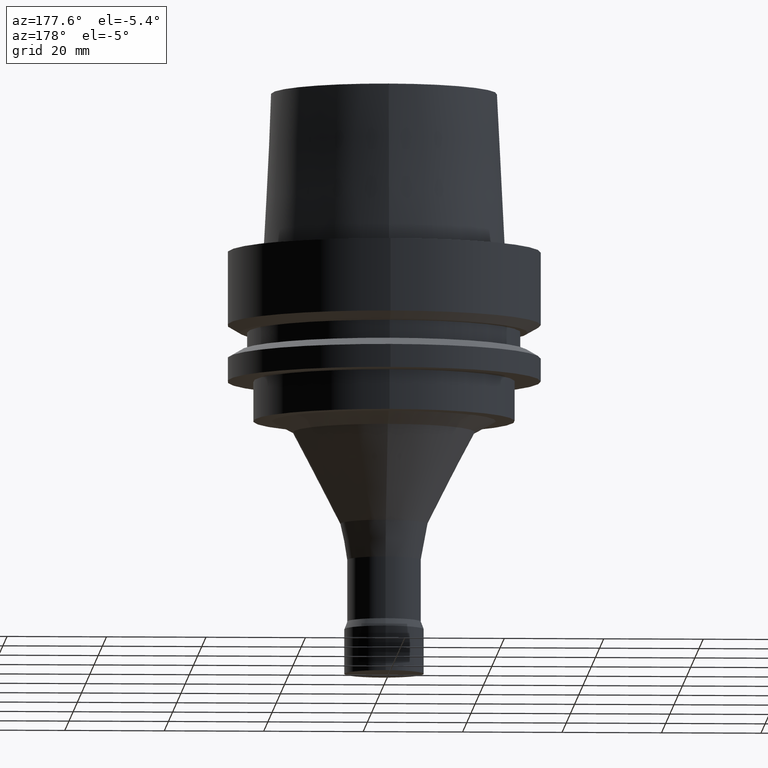
[diagram: clean part render]
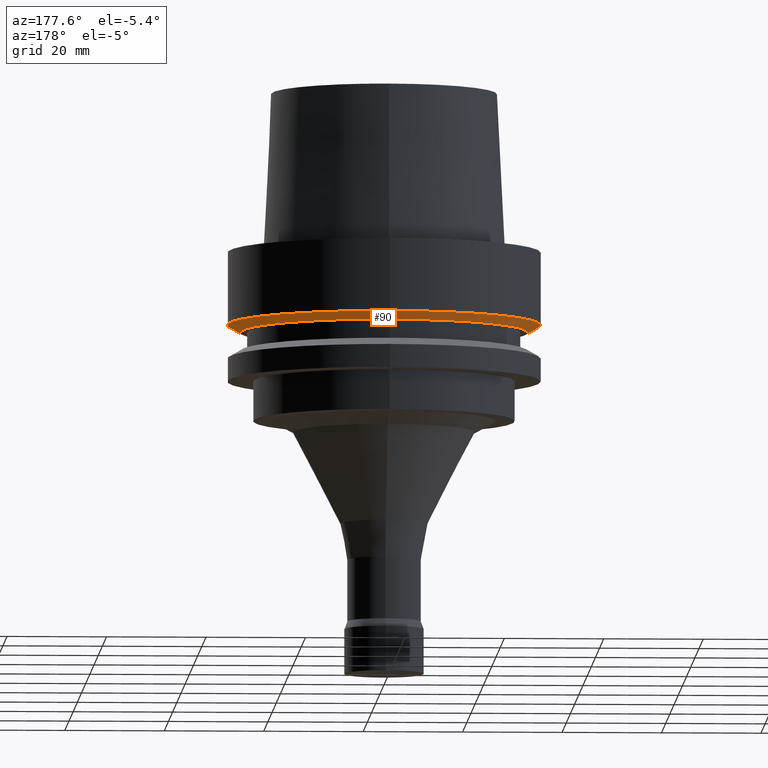
[diagram: same view with one face highlighted and labeled with its STEP entity id]
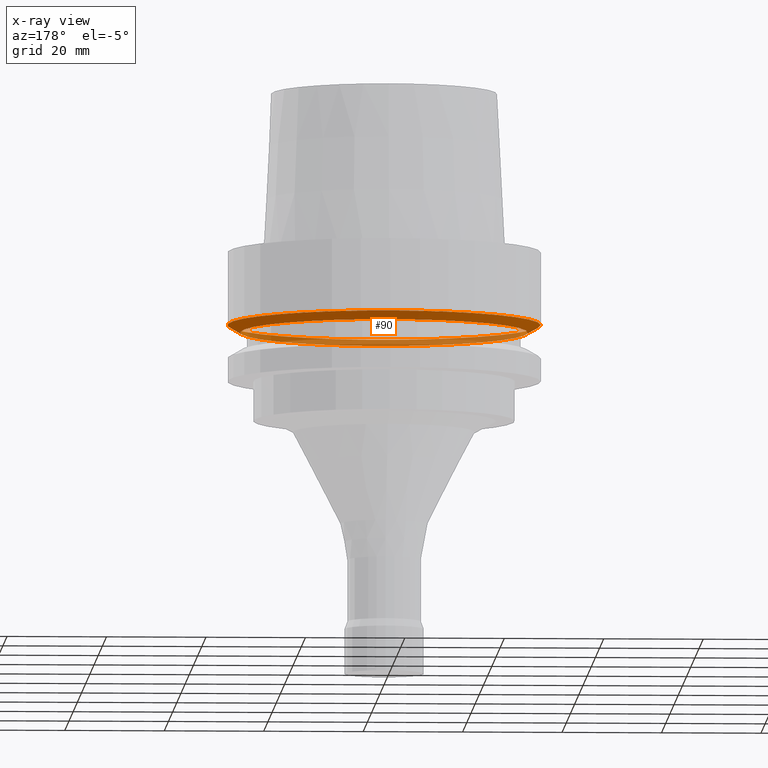
[diagram: x-ray of the same camera — body ghosted, the highlighted face saturated]
A machine part, auxiliary view. The second image highlights one B-rep face of the part: STEP entity #90.
The next image is the same camera in x-ray: the body ghosted, the highlighted face saturated — about 36% of this face is hidden behind the body in this view.
In plain terms, the highlighted conical surface has half-angle 60 deg.
Its self-contained STEP definition (entity closure, byte-faithful):
#90=ADVANCED_FACE('',(#140,#141),#142,.T.);
#140=FACE_BOUND('',#198,.T.);
#141=FACE_BOUND('',#199,.T.);
#142=CONICAL_SURFACE('',#200,30.19879763,1.04719755326565);
#198=EDGE_LOOP('',(#286));
#199=EDGE_LOOP('',(#287));
#200=AXIS2_PLACEMENT_3D('',#288,#289,#290);
#286=ORIENTED_EDGE('',*,*,#326,.F.);
#287=ORIENTED_EDGE('',*,*,#325,.T.);
#288=CARTESIAN_POINT('',(9.41370714892619E-016,1.88274142978524E-015,-15.373750465));
#289=DIRECTION('',(-6.12323399573677E-017,-1.22464679914735E-016,1.0));
#290=DIRECTION('',(-1.23259516440783E-032,1.0,1.22464679914735E-016));
#325=EDGE_CURVE('',#359,#359,#360,.T.);
#326=EDGE_CURVE('',#361,#361,#362,.T.);
#359=VERTEX_POINT('',#397);
#360=CIRCLE('',#398,31.5);
#361=VERTEX_POINT('',#399);
#362=CIRCLE('',#400,28.89759526);
#397=CARTESIAN_POINT('',(8.95369947972684E-016,31.5,-14.62250093));
#398=AXIS2_PLACEMENT_3D('',#450,#451,#452);
#399=CARTESIAN_POINT('',(9.87371481812553E-016,28.89759526,-16.125));
#400=AXIS2_PLACEMENT_3D('',#453,#454,#455);
#450=CARTESIAN_POINT('',(8.95369947972685E-016,1.79073989594537E-015,-14.62250093));
#451=DIRECTION('',(6.12323399573677E-017,1.22464679914735E-016,-1.0));
#452=DIRECTION('',(-1.23259516440783E-032,1.0,1.22464679914735E-016));
#453=CARTESIAN_POINT('',(9.87371481812553E-016,1.97474296362511E-015,-16.125));
#454=DIRECTION('',(6.12323399573677E-017,1.22464679914735E-016,-1.0));
#455=DIRECTION('',(-1.23259516440783E-032,1.0,1.22464679914735E-016));